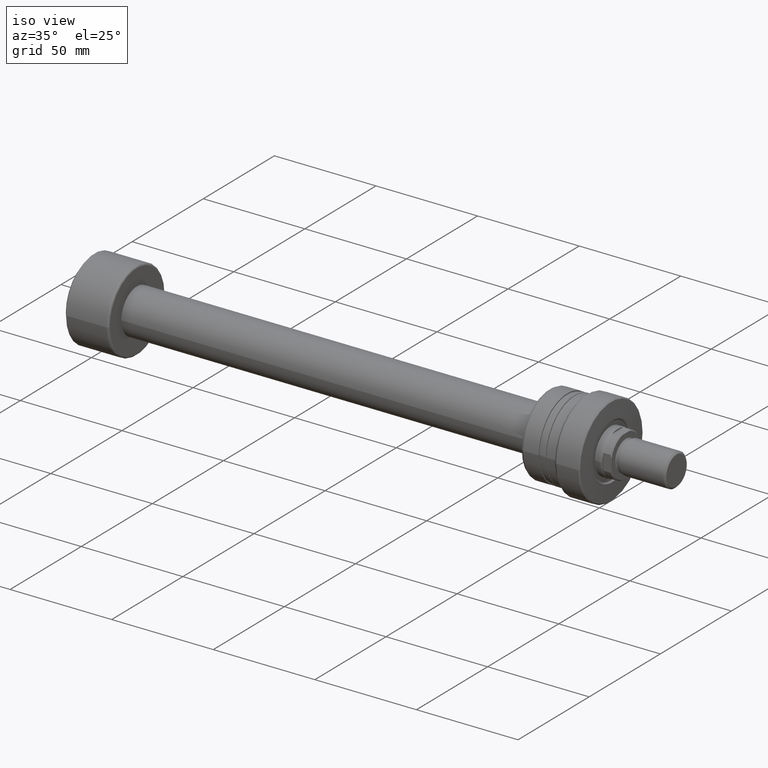
[diagram: clean part render]
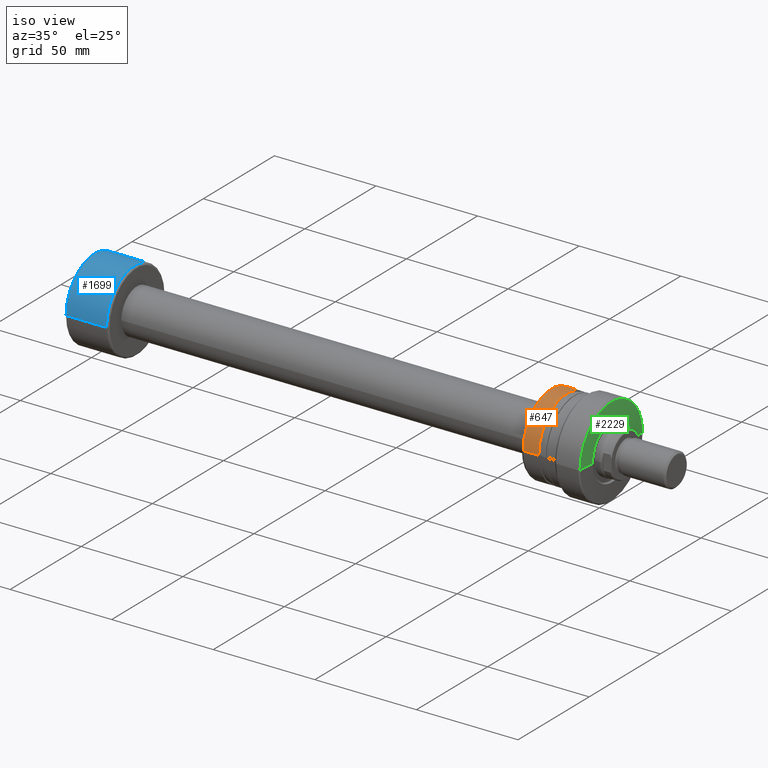
[diagram: same view with three faces highlighted in distinct colors, each labeled with its STEP entity id]
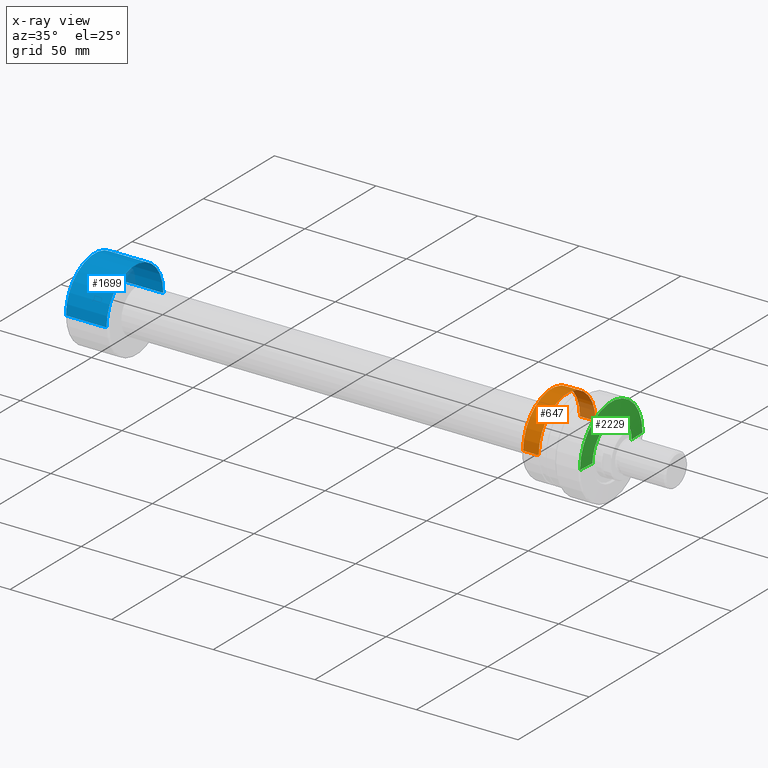
[diagram: x-ray of the same camera — body ghosted, the three highlighted faces saturated]
A machine part, iso view with three faces highlighted in distinct colors.
The next image is the same camera in x-ray (body ghosted, the three faces saturated) — at least one of them is partly hidden behind the body in this view.
Their STEP definitions:

[orange] entity #647 — the highlighted cylindrical surface (partial cylindrical patch) has radius 20 mm, axis along (1, 0, 0).
#27 = AXIS2_PLACEMENT_3D ( 'NONE', #290, #2279, #478 ) ;
#198 = VERTEX_POINT ( 'NONE', #2344 ) ;
#227 = ORIENTED_EDGE ( 'NONE', *, *, #947, .T. ) ;
#290 = CARTESIAN_POINT ( 'NONE',  ( -30.28002276692732408, 0.000000000000000000, 0.000000000000000000 ) ) ;
#302 = AXIS2_PLACEMENT_3D ( 'NONE', #2573, #572, #1913 ) ;
#305 = EDGE_LOOP ( 'NONE', ( #227, #1562, #1620, #1665 ) ) ;
#344 = CARTESIAN_POINT ( 'NONE',  ( -22.80878161770243651, 2.270952640808137383E-14, 0.000000000000000000 ) ) ;
#424 = EDGE_CURVE ( 'NONE', #2499, #198, #626, .T. ) ;
#478 = DIRECTION ( 'NONE',  ( -3.122502256758250009E-15, 1.000000000000000000, 0.000000000000000000 ) ) ;
#572 = DIRECTION ( 'NONE',  ( 1.000000000000000000, 3.039592211588219332E-15, -0.000000000000000000 ) ) ;
#596 = EDGE_CURVE ( 'NONE', #1628, #2640, #2787, .T. ) ;
#626 = LINE ( 'NONE', #2672, #1143 ) ;
#647 = ADVANCED_FACE ( 'NONE', ( #2076 ), #1567, .T. ) ;
#706 = DIRECTION ( 'NONE',  ( 1.000000000000000000, 3.039592211588219332E-15, -0.000000000000000000 ) ) ;
#947 = EDGE_CURVE ( 'NONE', #1628, #2499, #2351, .T. ) ;
#1042 = DIRECTION ( 'NONE',  ( 1.000000000000000000, 3.039592211588219332E-15, -0.000000000000000000 ) ) ;
#1143 = VECTOR ( 'NONE', #2659, 1000.000000000000000 ) ;
#1323 = CARTESIAN_POINT ( 'NONE',  ( -22.80878161770250045, 20.00000000000005329, 0.000000000000000000 ) ) ;
#1514 = VECTOR ( 'NONE', #706, 1000.000000000000000 ) ;
#1562 = ORIENTED_EDGE ( 'NONE', *, *, #424, .T. ) ;
#1567 = CYLINDRICAL_SURFACE ( 'NONE', #27, 20.00000000000001776 ) ;
#1620 = ORIENTED_EDGE ( 'NONE', *, *, #1715, .F. ) ;
#1628 = VERTEX_POINT ( 'NONE', #2177 ) ;
#1665 = ORIENTED_EDGE ( 'NONE', *, *, #596, .F. ) ;
#1715 = EDGE_CURVE ( 'NONE', #2640, #198, #2458, .T. ) ;
#1913 = DIRECTION ( 'NONE',  ( -3.122502256758252376E-15, 1.000000000000000000, 0.000000000000000000 ) ) ;
#1934 = CARTESIAN_POINT ( 'NONE',  ( -30.28002276692738803, 20.00000000000001776, 0.000000000000000000 ) ) ;
#2076 = FACE_OUTER_BOUND ( 'NONE', #305, .T. ) ;
#2127 = DIRECTION ( 'NONE',  ( -3.122502256758248431E-15, 1.000000000000000000, 0.000000000000000000 ) ) ;
#2177 = CARTESIAN_POINT ( 'NONE',  ( -30.50000000000030553, 20.00000000000000355, 0.000000000000000000 ) ) ;
#2279 = DIRECTION ( 'NONE',  ( 1.000000000000000000, 3.039592211588219332E-15, -0.000000000000000000 ) ) ;
#2344 = CARTESIAN_POINT ( 'NONE',  ( -22.80878161770237611, -20.00000000000000711, 2.449293598294709668E-15 ) ) ;
#2351 = CIRCLE ( 'NONE', #302, 20.00000000000000355 ) ;
#2458 = CIRCLE ( 'NONE', #2784, 20.00000000000002842 ) ;
#2499 = VERTEX_POINT ( 'NONE', #2830 ) ;
#2573 = CARTESIAN_POINT ( 'NONE',  ( -30.50000000000024158, -6.686410843751637443E-16, 0.000000000000000000 ) ) ;
#2640 = VERTEX_POINT ( 'NONE', #1323 ) ;
#2659 = DIRECTION ( 'NONE',  ( 1.000000000000000000, 3.039592211588219332E-15, -0.000000000000000000 ) ) ;
#2672 = CARTESIAN_POINT ( 'NONE',  ( -30.28002276692726014, -20.00000000000001776, 2.449293598294708880E-15 ) ) ;
#2784 = AXIS2_PLACEMENT_3D ( 'NONE', #344, #1042, #2127 ) ;
#2787 = LINE ( 'NONE', #1934, #1514 ) ;
#2830 = CARTESIAN_POINT ( 'NONE',  ( -30.50000000000018119, -20.00000000000000355, 2.449293598294706513E-15 ) ) ;

[blue] entity #1699 — the highlighted cylindrical surface (partial cylindrical patch) has radius 20 mm, axis along (-1, -0, -0).
#108 = VERTEX_POINT ( 'NONE', #2064 ) ;
#167 = VECTOR ( 'NONE', #707, 1000.000000000000000 ) ;
#209 = VERTEX_POINT ( 'NONE', #1033 ) ;
#257 = CARTESIAN_POINT ( 'NONE',  ( 2.139084644138131786E-16, -20.00000000000000000, 0.000000000000000000 ) ) ;
#363 = DIRECTION ( 'NONE',  ( -1.000000000000000000, -1.069542322069065801E-17, -0.000000000000000000 ) ) ;
#415 = CARTESIAN_POINT ( 'NONE',  ( 1.500000000000002887, -20.00000000000000000, 2.449293598294706513E-15 ) ) ;
#417 = VERTEX_POINT ( 'NONE', #2240 ) ;
#487 = EDGE_CURVE ( 'NONE', #1094, #108, #2159, .T. ) ;
#496 = CARTESIAN_POINT ( 'NONE',  ( 1.500000000000002442, 1.604313483103601552E-17, 0.000000000000000000 ) ) ;
#509 = EDGE_CURVE ( 'NONE', #417, #1094, #2519, .T. ) ;
#707 = DIRECTION ( 'NONE',  ( -1.000000000000000000, -1.069542322069065801E-17, -0.000000000000000000 ) ) ;
#728 = ORIENTED_EDGE ( 'NONE', *, *, #487, .F. ) ;
#756 = DIRECTION ( 'NONE',  ( -1.000000000000000000, -1.069542322069065801E-17, -0.000000000000000000 ) ) ;
#800 = CYLINDRICAL_SURFACE ( 'NONE', #2737, 20.00000000000000000 ) ;
#802 = CARTESIAN_POINT ( 'NONE',  ( 0.000000000000000000, 0.000000000000000000, 0.000000000000000000 ) ) ;
#815 = DIRECTION ( 'NONE',  ( 1.069542322069065955E-17, -1.000000000000000000, 0.000000000000000000 ) ) ;
#928 = CIRCLE ( 'NONE', #1714, 20.00000000000000000 ) ;
#1033 = CARTESIAN_POINT ( 'NONE',  ( 21.40000000000000924, 20.00000000000000000, 2.449293598294706513E-15 ) ) ;
#1094 = VERTEX_POINT ( 'NONE', #415 ) ;
#1239 = FACE_OUTER_BOUND ( 'NONE', #2549, .T. ) ;
#1399 = DIRECTION ( 'NONE',  ( -1.000000000000000000, -1.069542322069065801E-17, -0.000000000000000000 ) ) ;
#1479 = ORIENTED_EDGE ( 'NONE', *, *, #2613, .T. ) ;
#1584 = DIRECTION ( 'NONE',  ( -1.000000000000000000, -1.069542322069065801E-17, -0.000000000000000000 ) ) ;
#1699 = ADVANCED_FACE ( 'NONE', ( #1239 ), #800, .T. ) ;
#1714 = AXIS2_PLACEMENT_3D ( 'NONE', #2216, #1584, #2425 ) ;
#1832 = LINE ( 'NONE', #2526, #167 ) ;
#1844 = VECTOR ( 'NONE', #1399, 1000.000000000000000 ) ;
#2064 = CARTESIAN_POINT ( 'NONE',  ( 1.500000000000002442, 20.00000000000000000, 0.000000000000000000 ) ) ;
#2159 = CIRCLE ( 'NONE', #2861, 20.00000000000000000 ) ;
#2216 = CARTESIAN_POINT ( 'NONE',  ( 21.40000000000000924, 2.288820569227802283E-16, 0.000000000000000000 ) ) ;
#2240 = CARTESIAN_POINT ( 'NONE',  ( 21.40000000000000924, -20.00000000000000000, 0.000000000000000000 ) ) ;
#2300 = EDGE_CURVE ( 'NONE', #209, #108, #1832, .T. ) ;
#2392 = ORIENTED_EDGE ( 'NONE', *, *, #509, .F. ) ;
#2425 = DIRECTION ( 'NONE',  ( 0.000000000000000000, -1.000000000000000000, 0.000000000000000000 ) ) ;
#2508 = ORIENTED_EDGE ( 'NONE', *, *, #2300, .T. ) ;
#2519 = LINE ( 'NONE', #257, #1844 ) ;
#2526 = CARTESIAN_POINT ( 'NONE',  ( -2.139084644138131786E-16, 20.00000000000000000, 2.449293598294706513E-15 ) ) ;
#2549 = EDGE_LOOP ( 'NONE', ( #1479, #2508, #728, #2392 ) ) ;
#2613 = EDGE_CURVE ( 'NONE', #417, #209, #928, .T. ) ;
#2702 = DIRECTION ( 'NONE',  ( 1.084202172485504434E-17, -1.000000000000000000, 0.000000000000000000 ) ) ;
#2737 = AXIS2_PLACEMENT_3D ( 'NONE', #802, #363, #815 ) ;
#2861 = AXIS2_PLACEMENT_3D ( 'NONE', #496, #756, #2702 ) ;

[green] entity #2229 — the highlighted conical surface has half-angle 87.138 deg.
#116 = AXIS2_PLACEMENT_3D ( 'NONE', #248, #695, #1146 ) ;
#152 = VERTEX_POINT ( 'NONE', #1413 ) ;
#248 = CARTESIAN_POINT ( 'NONE',  ( -1.100000000000732392, 8.869536993631697946E-14, 0.000000000000000000 ) ) ;
#372 = LINE ( 'NONE', #384, #1341 ) ;
#384 = CARTESIAN_POINT ( 'NONE',  ( -1.100000000000665556, -21.99999999999997158, 0.000000000000000000 ) ) ;
#398 = DIRECTION ( 'NONE',  ( -1.000000000000000000, -3.039592211588226037E-15, 0.000000000000000000 ) ) ;
#479 = DIRECTION ( 'NONE',  ( -1.000000000000000000, -3.039592211588219332E-15, 0.000000000000000000 ) ) ;
#501 = ORIENTED_EDGE ( 'NONE', *, *, #1272, .T. ) ;
#613 = DIRECTION ( 'NONE',  ( -0.04993761694392855749, 0.9987523388778428712, 1.223118854947682994E-16 ) ) ;
#695 = DIRECTION ( 'NONE',  ( 1.000000000000000000, 3.039592211588219332E-15, -0.000000000000000000 ) ) ;
#730 = CONICAL_SURFACE ( 'NONE', #2264, 22.00000000000006040, 1.520837931072920535 ) ;
#738 = EDGE_CURVE ( 'NONE', #1823, #152, #1190, .T. ) ;
#793 = ORIENTED_EDGE ( 'NONE', *, *, #1370, .F. ) ;
#853 = DIRECTION ( 'NONE',  ( -3.035903820383676297E-15, 1.000000000000000000, 0.000000000000000000 ) ) ;
#916 = CIRCLE ( 'NONE', #959, 13.74937616943892849 ) ;
#959 = AXIS2_PLACEMENT_3D ( 'NONE', #1730, #398, #853 ) ;
#1021 = EDGE_CURVE ( 'NONE', #2645, #2869, #916, .T. ) ;
#1118 = FACE_OUTER_BOUND ( 'NONE', #1535, .T. ) ;
#1146 = DIRECTION ( 'NONE',  ( -3.035766082959404132E-15, 1.000000000000000000, 0.000000000000000000 ) ) ;
#1153 = VECTOR ( 'NONE', #613, 1000.000000000000000 ) ;
#1190 = CIRCLE ( 'NONE', #116, 22.00000000000006040 ) ;
#1269 = DIRECTION ( 'NONE',  ( -0.04993761694392248596, -0.9987523388778432043, 0.000000000000000000 ) ) ;
#1272 = EDGE_CURVE ( 'NONE', #2869, #1823, #2849, .T. ) ;
#1341 = VECTOR ( 'NONE', #1269, 1000.000000000000114 ) ;
#1370 = EDGE_CURVE ( 'NONE', #2645, #152, #372, .T. ) ;
#1405 = CARTESIAN_POINT ( 'NONE',  ( -0.6874688084724417392, 13.74937616943901908, 2.189017954870906259E-15 ) ) ;
#1413 = CARTESIAN_POINT ( 'NONE',  ( -1.100000000000665556, -21.99999999999997158, 0.000000000000000000 ) ) ;
#1535 = EDGE_LOOP ( 'NONE', ( #2529, #501, #2604, #793 ) ) ;
#1730 = CARTESIAN_POINT ( 'NONE',  ( -0.6874688084723999948, 8.994929653312370924E-14, 0.000000000000000000 ) ) ;
#1823 = VERTEX_POINT ( 'NONE', #2556 ) ;
#2006 = DIRECTION ( 'NONE',  ( 3.035766082959404132E-15, -1.000000000000000000, 0.000000000000000000 ) ) ;
#2229 = ADVANCED_FACE ( 'NONE', ( #1118 ), #730, .T. ) ;
#2236 = CARTESIAN_POINT ( 'NONE',  ( -1.100000000000732392, 8.869536993631697946E-14, 0.000000000000000000 ) ) ;
#2264 = AXIS2_PLACEMENT_3D ( 'NONE', #2236, #479, #2006 ) ;
#2399 = CARTESIAN_POINT ( 'NONE',  ( -1.100000000000799227, 22.00000000000015277, 2.694222958124184698E-15 ) ) ;
#2410 = CARTESIAN_POINT ( 'NONE',  ( -0.6874688084723582504, -13.74937616943883789, 0.000000000000000000 ) ) ;
#2529 = ORIENTED_EDGE ( 'NONE', *, *, #1021, .T. ) ;
#2556 = CARTESIAN_POINT ( 'NONE',  ( -1.100000000000799227, 22.00000000000015277, 2.724839128102870063E-15 ) ) ;
#2604 = ORIENTED_EDGE ( 'NONE', *, *, #738, .T. ) ;
#2645 = VERTEX_POINT ( 'NONE', #2410 ) ;
#2849 = LINE ( 'NONE', #2399, #1153 ) ;
#2869 = VERTEX_POINT ( 'NONE', #1405 ) ;